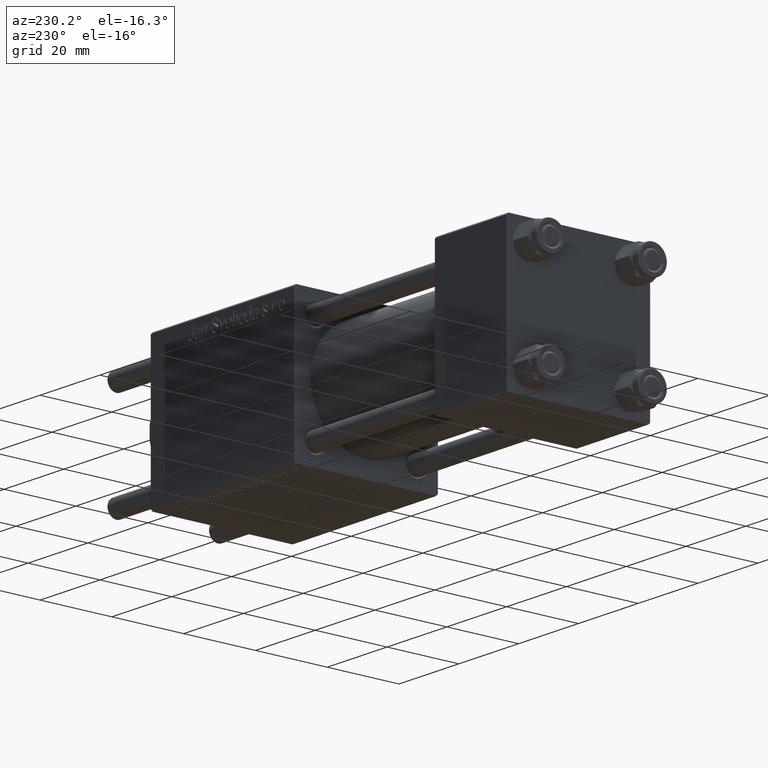
[diagram: clean part render]
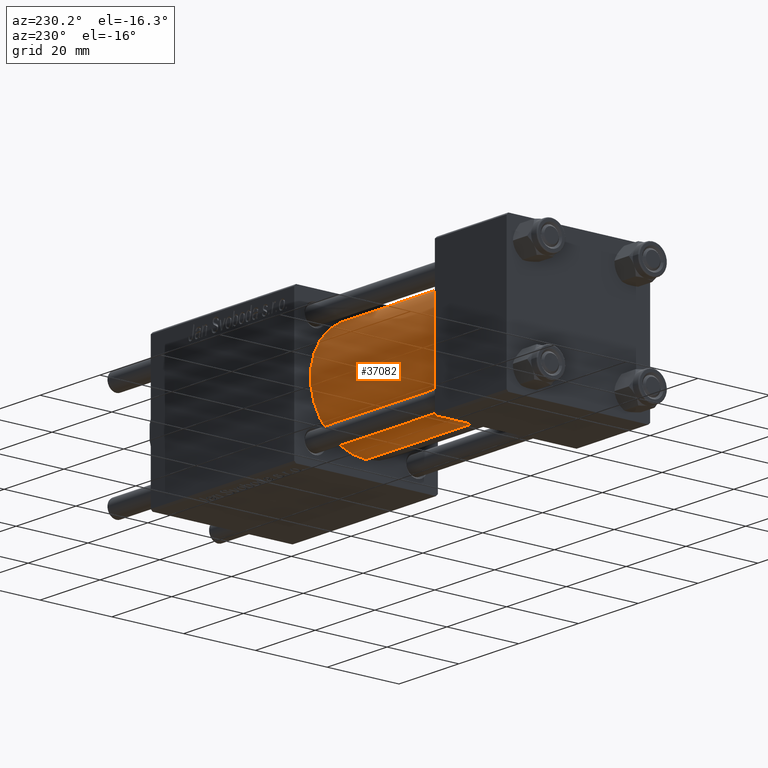
[diagram: same view with one face highlighted and labeled with its STEP entity id]
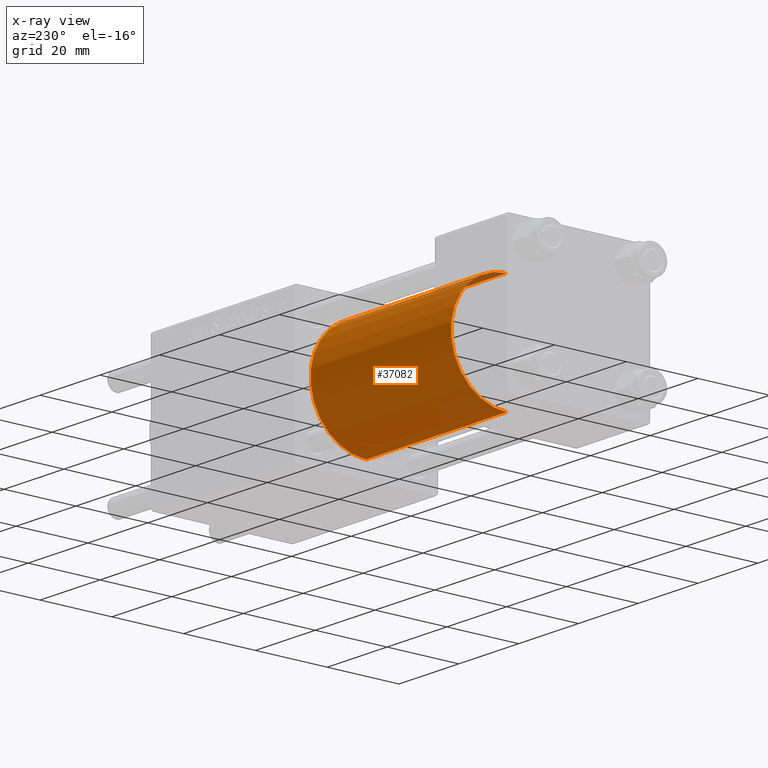
[diagram: x-ray of the same camera — body ghosted, the highlighted face saturated]
A machine part, auxiliary view. The second image highlights one B-rep face of the part: STEP entity #37082.
The next image is the same camera in x-ray: the body ghosted, the highlighted face saturated — about 5% of this face is hidden behind the body in this view.
In plain terms, the highlighted cylindrical surface (partial cylindrical patch) has radius 15.5 mm, axis along (-1, -0, -0).
Its self-contained STEP definition (entity closure, byte-faithful):
#22 = ORIENTED_EDGE ( 'NONE', *, *, #42425, .T. ) ;
#1573 = EDGE_CURVE ( 'NONE', #25873, #27449, #6179, .T. ) ;
#3043 = CARTESIAN_POINT ( 'NONE',  ( 71.00000000000001421, -2.602085213965210642E-15, 0.000000000000000000 ) ) ;
#6179 = LINE ( 'NONE', #19645, #38351 ) ;
#7367 = FACE_OUTER_BOUND ( 'NONE', #50498, .T. ) ;
#9602 = CARTESIAN_POINT ( 'NONE',  ( 24.00000000000000000, -2.602085213965210642E-15, 15.50000000000000000 ) ) ;
#11535 = AXIS2_PLACEMENT_3D ( 'NONE', #22732, #13583, #31043 ) ;
#13583 = DIRECTION ( 'NONE',  ( 1.000000000000000000, 0.000000000000000000, 0.000000000000000000 ) ) ;
#14855 = VERTEX_POINT ( 'NONE', #44258 ) ;
#15222 = EDGE_CURVE ( 'NONE', #14855, #47820, #27537, .T. ) ;
#17457 = ORIENTED_EDGE ( 'NONE', *, *, #15222, .F. ) ;
#17680 = ORIENTED_EDGE ( 'NONE', *, *, #1573, .T. ) ;
#18872 = AXIS2_PLACEMENT_3D ( 'NONE', #3043, #55214, #54930 ) ;
#19645 = CARTESIAN_POINT ( 'NONE',  ( 71.00000000000001421, -7.038826752868131828E-16, -15.50000000000000000 ) ) ;
#22680 = CARTESIAN_POINT ( 'NONE',  ( 71.00000000000001421, -2.602085213965210642E-15, 15.50000000000000000 ) ) ;
#22732 = CARTESIAN_POINT ( 'NONE',  ( 71.00000000000001421, -2.602085213965210642E-15, 0.000000000000000000 ) ) ;
#25873 = VERTEX_POINT ( 'NONE', #28406 ) ;
#27247 = CIRCLE ( 'NONE', #55643, 15.50000000000000000 ) ;
#27449 = VERTEX_POINT ( 'NONE', #56382 ) ;
#27537 = LINE ( 'NONE', #22680, #45026 ) ;
#28406 = CARTESIAN_POINT ( 'NONE',  ( 71.00000000000001421, -7.038826752868131828E-16, -15.50000000000000000 ) ) ;
#30380 = ORIENTED_EDGE ( 'NONE', *, *, #35865, .F. ) ;
#31024 = DIRECTION ( 'NONE',  ( 0.000000000000000000, 0.000000000000000000, 1.000000000000000000 ) ) ;
#31043 = DIRECTION ( 'NONE',  ( 0.000000000000000000, 0.000000000000000000, -1.000000000000000000 ) ) ;
#31587 = DIRECTION ( 'NONE',  ( 1.000000000000000000, 0.000000000000000000, 0.000000000000000000 ) ) ;
#32246 = DIRECTION ( 'NONE',  ( -1.000000000000000000, -0.000000000000000000, -0.000000000000000000 ) ) ;
#32388 = DIRECTION ( 'NONE',  ( -1.000000000000000000, -0.000000000000000000, -0.000000000000000000 ) ) ;
#35865 = EDGE_CURVE ( 'NONE', #25873, #14855, #36205, .T. ) ;
#36205 = CIRCLE ( 'NONE', #11535, 15.50000000000000000 ) ;
#37082 = ADVANCED_FACE ( 'NONE', ( #7367 ), #42312, .T. ) ;
#38351 = VECTOR ( 'NONE', #32246, 1000.000000000000000 ) ;
#42312 = CYLINDRICAL_SURFACE ( 'NONE', #18872, 15.50000000000000000 ) ;
#42425 = EDGE_CURVE ( 'NONE', #27449, #47820, #27247, .T. ) ;
#44258 = CARTESIAN_POINT ( 'NONE',  ( 71.00000000000001421, -2.602085213965210642E-15, 15.50000000000000000 ) ) ;
#45026 = VECTOR ( 'NONE', #32388, 1000.000000000000000 ) ;
#47820 = VERTEX_POINT ( 'NONE', #9602 ) ;
#50498 = EDGE_LOOP ( 'NONE', ( #30380, #17680, #22, #17457 ) ) ;
#52534 = CARTESIAN_POINT ( 'NONE',  ( 24.00000000000000000, -2.602085213965210642E-15, 0.000000000000000000 ) ) ;
#54930 = DIRECTION ( 'NONE',  ( 0.000000000000000000, 0.000000000000000000, 1.000000000000000000 ) ) ;
#55214 = DIRECTION ( 'NONE',  ( -1.000000000000000000, -0.000000000000000000, -0.000000000000000000 ) ) ;
#55643 = AXIS2_PLACEMENT_3D ( 'NONE', #52534, #31587, #31024 ) ;
#56382 = CARTESIAN_POINT ( 'NONE',  ( 24.00000000000000000, -7.038826752868131828E-16, -15.50000000000000000 ) ) ;